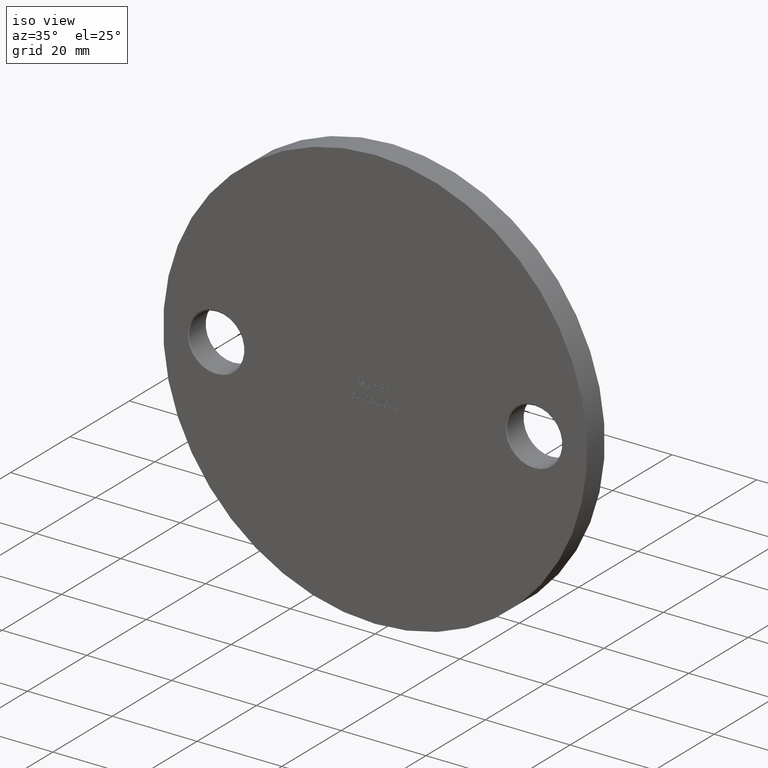
[diagram: clean part render]
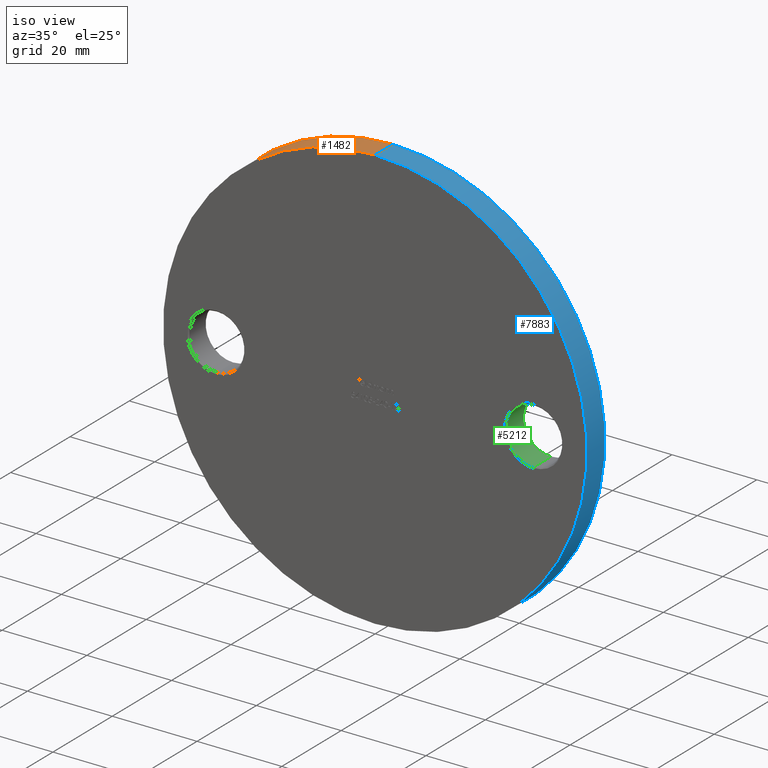
[diagram: same view with three faces highlighted in distinct colors, each labeled with its STEP entity id]
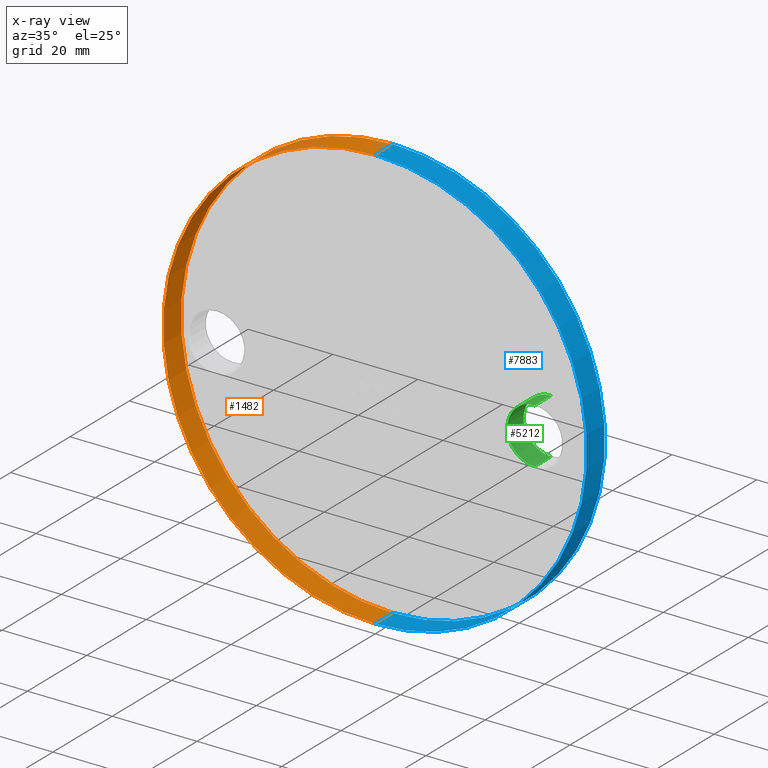
[diagram: x-ray of the same camera — body ghosted, the three highlighted faces saturated]
A machine part, iso view with three faces highlighted in distinct colors.
The next image is the same camera in x-ray (body ghosted, the three faces saturated) — at least one of them is partly hidden behind the body in this view.
Their STEP definitions:

[orange] entity #1482 — the highlighted cylindrical surface (partial cylindrical patch) has radius 50 mm, axis along (-0, -1, -0).
#392 = ORIENTED_EDGE ( 'NONE', *, *, #4024, .T. ) ;
#765 = EDGE_CURVE ( 'NONE', #3001, #12068, #4592, .T. ) ;
#780 = EDGE_CURVE ( 'NONE', #2691, #3001, #11810, .T. ) ;
#1049 = CARTESIAN_POINT ( 'NONE',  ( 0.000000000000000000, 6.000000000000000000, -50.00000000000000000 ) ) ;
#1482 = ADVANCED_FACE ( 'NONE', ( #3375 ), #9596, .T. ) ;
#1722 = VECTOR ( 'NONE', #12659, 1000.000000000000000 ) ;
#2618 = DIRECTION ( 'NONE',  ( -0.000000000000000000, -1.000000000000000000, -0.000000000000000000 ) ) ;
#2691 = VERTEX_POINT ( 'NONE', #1049 ) ;
#2779 = CARTESIAN_POINT ( 'NONE',  ( 0.000000000000000000, 6.000000000000000000, 0.000000000000000000 ) ) ;
#3001 = VERTEX_POINT ( 'NONE', #6324 ) ;
#3044 = AXIS2_PLACEMENT_3D ( 'NONE', #2779, #3990, #3862 ) ;
#3216 = ORIENTED_EDGE ( 'NONE', *, *, #765, .F. ) ;
#3375 = FACE_OUTER_BOUND ( 'NONE', #11566, .T. ) ;
#3457 = CARTESIAN_POINT ( 'NONE',  ( 0.000000000000000000, 0.000000000000000000, 0.000000000000000000 ) ) ;
#3761 = CARTESIAN_POINT ( 'NONE',  ( 0.000000000000000000, 6.000000000000000000, 0.000000000000000000 ) ) ;
#3862 = DIRECTION ( 'NONE',  ( 0.000000000000000000, 0.000000000000000000, 1.000000000000000000 ) ) ;
#3990 = DIRECTION ( 'NONE',  ( 0.000000000000000000, 1.000000000000000000, 0.000000000000000000 ) ) ;
#4024 = EDGE_CURVE ( 'NONE', #11479, #12068, #9748, .T. ) ;
#4592 = LINE ( 'NONE', #4711, #1722 ) ;
#4657 = CARTESIAN_POINT ( 'NONE',  ( 6.123233995736766085E-15, 0.000000000000000000, 50.00000000000000000 ) ) ;
#4711 = CARTESIAN_POINT ( 'NONE',  ( 6.123233995736766085E-15, 6.000000000000000000, 50.00000000000000000 ) ) ;
#6324 = CARTESIAN_POINT ( 'NONE',  ( 6.123233995736766085E-15, 6.000000000000000000, 50.00000000000000000 ) ) ;
#6496 = AXIS2_PLACEMENT_3D ( 'NONE', #3457, #9803, #8865 ) ;
#7651 = CARTESIAN_POINT ( 'NONE',  ( 0.000000000000000000, 0.000000000000000000, -50.00000000000000000 ) ) ;
#8108 = VECTOR ( 'NONE', #12160, 1000.000000000000000 ) ;
#8133 = DIRECTION ( 'NONE',  ( 0.000000000000000000, 0.000000000000000000, -1.000000000000000000 ) ) ;
#8614 = LINE ( 'NONE', #12297, #8108 ) ;
#8865 = DIRECTION ( 'NONE',  ( 0.000000000000000000, 0.000000000000000000, 1.000000000000000000 ) ) ;
#9272 = AXIS2_PLACEMENT_3D ( 'NONE', #3761, #2618, #8133 ) ;
#9596 = CYLINDRICAL_SURFACE ( 'NONE', #9272, 50.00000000000000000 ) ;
#9604 = ORIENTED_EDGE ( 'NONE', *, *, #780, .F. ) ;
#9748 = CIRCLE ( 'NONE', #6496, 50.00000000000000000 ) ;
#9803 = DIRECTION ( 'NONE',  ( 0.000000000000000000, 1.000000000000000000, 0.000000000000000000 ) ) ;
#11479 = VERTEX_POINT ( 'NONE', #7651 ) ;
#11566 = EDGE_LOOP ( 'NONE', ( #3216, #9604, #13659, #392 ) ) ;
#11810 = CIRCLE ( 'NONE', #3044, 50.00000000000000000 ) ;
#12068 = VERTEX_POINT ( 'NONE', #4657 ) ;
#12160 = DIRECTION ( 'NONE',  ( -0.000000000000000000, -1.000000000000000000, -0.000000000000000000 ) ) ;
#12297 = CARTESIAN_POINT ( 'NONE',  ( 0.000000000000000000, 6.000000000000000000, -50.00000000000000000 ) ) ;
#12659 = DIRECTION ( 'NONE',  ( -0.000000000000000000, -1.000000000000000000, -0.000000000000000000 ) ) ;
#12780 = EDGE_CURVE ( 'NONE', #2691, #11479, #8614, .T. ) ;
#13659 = ORIENTED_EDGE ( 'NONE', *, *, #12780, .T. ) ;

[blue] entity #7883 — the highlighted cylindrical surface (partial cylindrical patch) has radius 50 mm, axis along (-0, -1, -0).
#765 = EDGE_CURVE ( 'NONE', #3001, #12068, #4592, .T. ) ;
#959 = CYLINDRICAL_SURFACE ( 'NONE', #6146, 50.00000000000000000 ) ;
#1049 = CARTESIAN_POINT ( 'NONE',  ( 0.000000000000000000, 6.000000000000000000, -50.00000000000000000 ) ) ;
#1722 = VECTOR ( 'NONE', #12659, 1000.000000000000000 ) ;
#1978 = DIRECTION ( 'NONE',  ( 0.000000000000000000, 1.000000000000000000, 0.000000000000000000 ) ) ;
#2013 = ORIENTED_EDGE ( 'NONE', *, *, #8111, .T. ) ;
#2150 = ORIENTED_EDGE ( 'NONE', *, *, #2673, .F. ) ;
#2204 = DIRECTION ( 'NONE',  ( 0.000000000000000000, 1.000000000000000000, 0.000000000000000000 ) ) ;
#2258 = CARTESIAN_POINT ( 'NONE',  ( 0.000000000000000000, 6.000000000000000000, 0.000000000000000000 ) ) ;
#2673 = EDGE_CURVE ( 'NONE', #3001, #2691, #12977, .T. ) ;
#2691 = VERTEX_POINT ( 'NONE', #1049 ) ;
#2836 = DIRECTION ( 'NONE',  ( -0.000000000000000000, -1.000000000000000000, -0.000000000000000000 ) ) ;
#2877 = EDGE_LOOP ( 'NONE', ( #2150, #7601, #2013, #11084 ) ) ;
#3001 = VERTEX_POINT ( 'NONE', #6324 ) ;
#4592 = LINE ( 'NONE', #4711, #1722 ) ;
#4657 = CARTESIAN_POINT ( 'NONE',  ( 6.123233995736766085E-15, 0.000000000000000000, 50.00000000000000000 ) ) ;
#4711 = CARTESIAN_POINT ( 'NONE',  ( 6.123233995736766085E-15, 6.000000000000000000, 50.00000000000000000 ) ) ;
#4823 = CARTESIAN_POINT ( 'NONE',  ( 0.000000000000000000, 6.000000000000000000, 0.000000000000000000 ) ) ;
#5132 = AXIS2_PLACEMENT_3D ( 'NONE', #2258, #2204, #7609 ) ;
#6146 = AXIS2_PLACEMENT_3D ( 'NONE', #4823, #2836, #7073 ) ;
#6324 = CARTESIAN_POINT ( 'NONE',  ( 6.123233995736766085E-15, 6.000000000000000000, 50.00000000000000000 ) ) ;
#7073 = DIRECTION ( 'NONE',  ( 0.000000000000000000, 0.000000000000000000, -1.000000000000000000 ) ) ;
#7155 = FACE_OUTER_BOUND ( 'NONE', #2877, .T. ) ;
#7601 = ORIENTED_EDGE ( 'NONE', *, *, #765, .T. ) ;
#7609 = DIRECTION ( 'NONE',  ( 0.000000000000000000, 0.000000000000000000, 1.000000000000000000 ) ) ;
#7651 = CARTESIAN_POINT ( 'NONE',  ( 0.000000000000000000, 0.000000000000000000, -50.00000000000000000 ) ) ;
#7682 = AXIS2_PLACEMENT_3D ( 'NONE', #11809, #1978, #8493 ) ;
#7883 = ADVANCED_FACE ( 'NONE', ( #7155 ), #959, .T. ) ;
#8108 = VECTOR ( 'NONE', #12160, 1000.000000000000000 ) ;
#8111 = EDGE_CURVE ( 'NONE', #12068, #11479, #11193, .T. ) ;
#8493 = DIRECTION ( 'NONE',  ( 0.000000000000000000, 0.000000000000000000, 1.000000000000000000 ) ) ;
#8614 = LINE ( 'NONE', #12297, #8108 ) ;
#11084 = ORIENTED_EDGE ( 'NONE', *, *, #12780, .F. ) ;
#11193 = CIRCLE ( 'NONE', #7682, 50.00000000000000000 ) ;
#11479 = VERTEX_POINT ( 'NONE', #7651 ) ;
#11809 = CARTESIAN_POINT ( 'NONE',  ( 0.000000000000000000, 0.000000000000000000, 0.000000000000000000 ) ) ;
#12068 = VERTEX_POINT ( 'NONE', #4657 ) ;
#12160 = DIRECTION ( 'NONE',  ( -0.000000000000000000, -1.000000000000000000, -0.000000000000000000 ) ) ;
#12297 = CARTESIAN_POINT ( 'NONE',  ( 0.000000000000000000, 6.000000000000000000, -50.00000000000000000 ) ) ;
#12659 = DIRECTION ( 'NONE',  ( -0.000000000000000000, -1.000000000000000000, -0.000000000000000000 ) ) ;
#12780 = EDGE_CURVE ( 'NONE', #2691, #11479, #8614, .T. ) ;
#12977 = CIRCLE ( 'NONE', #5132, 50.00000000000000000 ) ;

[green] entity #5212 — the highlighted cylindrical surface (edge-blend (fillet) strip) has radius 6.5 mm, axis along (-0, -1, -0).
#723 = CARTESIAN_POINT ( 'NONE',  ( 37.50000000000000000, 0.2499999999999967526, -6.500000000000009770 ) ) ;
#1193 = DIRECTION ( 'NONE',  ( -0.000000000000000000, -1.000000000000000000, -0.000000000000000000 ) ) ;
#1291 = DIRECTION ( 'NONE',  ( 0.000000000000000000, 0.000000000000000000, -1.000000000000000000 ) ) ;
#1376 = DIRECTION ( 'NONE',  ( -0.000000000000000000, -1.000000000000000000, -0.000000000000000000 ) ) ;
#1579 = CARTESIAN_POINT ( 'NONE',  ( 37.50000000000000000, 6.000000000000000000, -6.500000000000009770 ) ) ;
#2028 = VERTEX_POINT ( 'NONE', #11158 ) ;
#2446 = CIRCLE ( 'NONE', #11276, 6.500000000000000888 ) ;
#2454 = LINE ( 'NONE', #11506, #7484 ) ;
#2480 = DIRECTION ( 'NONE',  ( -0.000000000000000000, -1.000000000000000000, -0.000000000000000000 ) ) ;
#2847 = CARTESIAN_POINT ( 'NONE',  ( 37.50000000000000000, 5.749999999999986677, -6.500000000000009770 ) ) ;
#3317 = EDGE_CURVE ( 'NONE', #5749, #7252, #10416, .T. ) ;
#3488 = CARTESIAN_POINT ( 'NONE',  ( 37.50000000000000000, 6.000000000000000000, -9.184850993605148733E-15 ) ) ;
#4367 = ORIENTED_EDGE ( 'NONE', *, *, #3317, .T. ) ;
#4410 = AXIS2_PLACEMENT_3D ( 'NONE', #6533, #1193, #9776 ) ;
#4640 = VERTEX_POINT ( 'NONE', #2847 ) ;
#5175 = LINE ( 'NONE', #1579, #8039 ) ;
#5212 = ADVANCED_FACE ( 'NONE', ( #5878 ), #7535, .F. ) ;
#5312 = ORIENTED_EDGE ( 'NONE', *, *, #9292, .T. ) ;
#5666 = DIRECTION ( 'NONE',  ( 0.000000000000000000, 0.000000000000000000, 1.000000000000000000 ) ) ;
#5749 = VERTEX_POINT ( 'NONE', #11666 ) ;
#5878 = FACE_OUTER_BOUND ( 'NONE', #10612, .T. ) ;
#6215 = EDGE_CURVE ( 'NONE', #4640, #7252, #5175, .T. ) ;
#6533 = CARTESIAN_POINT ( 'NONE',  ( 37.50000000000000000, 0.2499999999999967526, -9.184850993605148733E-15 ) ) ;
#7252 = VERTEX_POINT ( 'NONE', #723 ) ;
#7484 = VECTOR ( 'NONE', #9537, 1000.000000000000000 ) ;
#7535 = CYLINDRICAL_SURFACE ( 'NONE', #10265, 6.500000000000000888 ) ;
#8039 = VECTOR ( 'NONE', #2480, 1000.000000000000000 ) ;
#8958 = CARTESIAN_POINT ( 'NONE',  ( 37.50000000000000000, 5.749999999999986677, -9.184850993605148733E-15 ) ) ;
#9292 = EDGE_CURVE ( 'NONE', #2028, #5749, #2454, .T. ) ;
#9537 = DIRECTION ( 'NONE',  ( -0.000000000000000000, -1.000000000000000000, -0.000000000000000000 ) ) ;
#9776 = DIRECTION ( 'NONE',  ( 0.000000000000000000, 0.000000000000000000, 1.000000000000000000 ) ) ;
#9894 = EDGE_CURVE ( 'NONE', #4640, #2028, #2446, .T. ) ;
#9978 = ORIENTED_EDGE ( 'NONE', *, *, #6215, .F. ) ;
#10265 = AXIS2_PLACEMENT_3D ( 'NONE', #3488, #1376, #1291 ) ;
#10416 = CIRCLE ( 'NONE', #4410, 6.500000000000000888 ) ;
#10612 = EDGE_LOOP ( 'NONE', ( #12012, #5312, #4367, #9978 ) ) ;
#11158 = CARTESIAN_POINT ( 'NONE',  ( 37.50000000000000000, 5.749999999999986677, 6.499999999999991118 ) ) ;
#11276 = AXIS2_PLACEMENT_3D ( 'NONE', #8958, #13324, #5666 ) ;
#11506 = CARTESIAN_POINT ( 'NONE',  ( 37.50000000000000000, 6.000000000000000000, 6.499999999999991118 ) ) ;
#11666 = CARTESIAN_POINT ( 'NONE',  ( 37.50000000000000000, 0.2499999999999967526, 6.499999999999991118 ) ) ;
#12012 = ORIENTED_EDGE ( 'NONE', *, *, #9894, .T. ) ;
#13324 = DIRECTION ( 'NONE',  ( 0.000000000000000000, 1.000000000000000000, 0.000000000000000000 ) ) ;